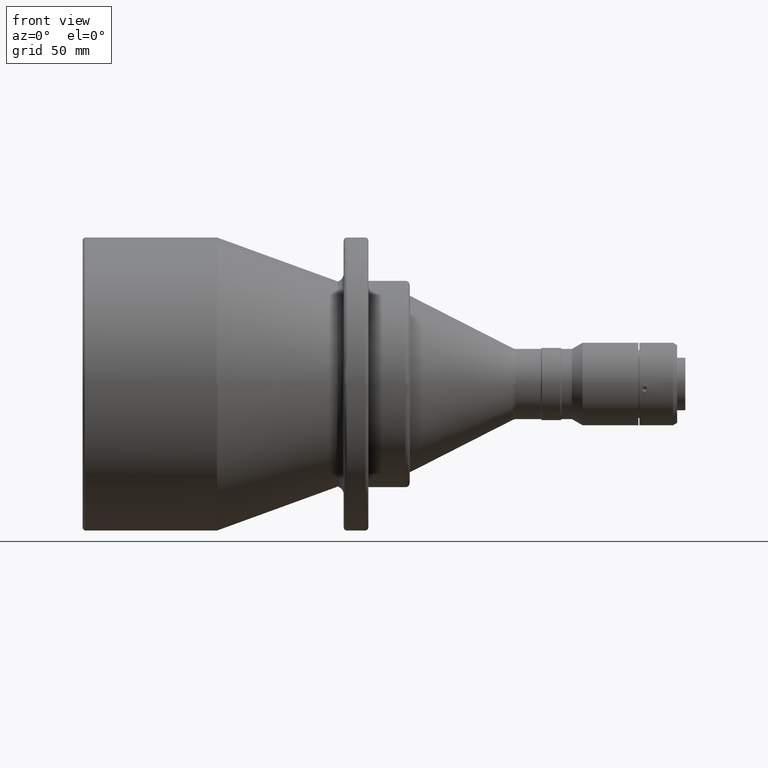
[diagram: clean part render]
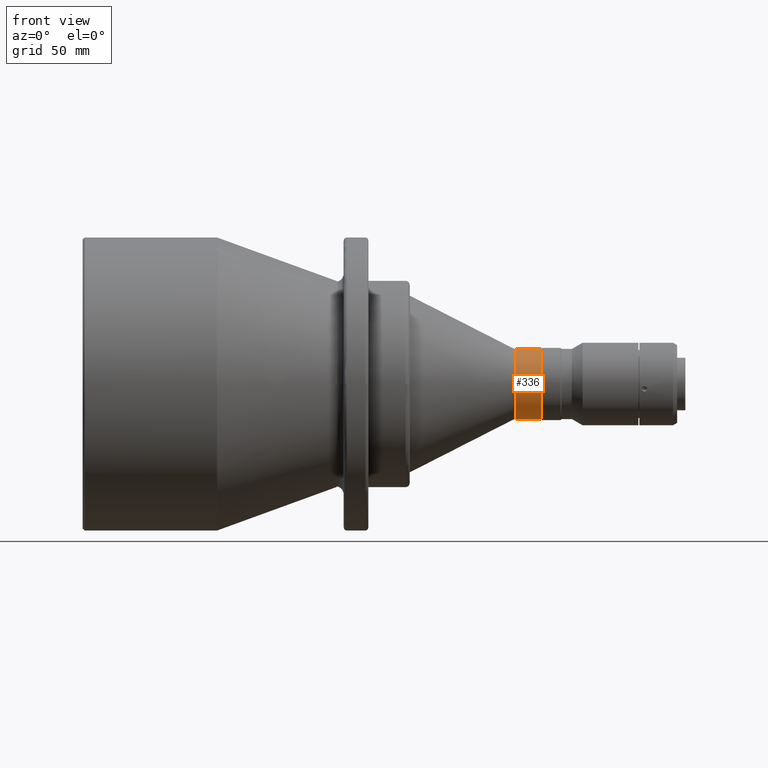
[diagram: same view with one face highlighted and labeled with its STEP entity id]
A machine part, front view. The second image highlights one B-rep face of the part: STEP entity #336.
In plain terms, the highlighted cylindrical surface (edge-blend (fillet) strip) has radius 17 mm, axis along (1, 0, 0).
Its self-contained STEP definition (entity closure, byte-faithful):
#50 = ORIENTED_EDGE ( 'NONE', *, *, #1549, .F. ) ;
#55 = DIRECTION ( 'NONE',  ( 1.000000000000000000, -0.0000000000000000000, 8.163404592855054900E-016 ) ) ;
#232 = VECTOR ( 'NONE', #1106, 1000.000000000000000 ) ;
#248 = CARTESIAN_POINT ( 'NONE',  ( 76.04999999999999700, 0.0000000000000000000, 0.0000000000000000000 ) ) ;
#293 = CARTESIAN_POINT ( 'NONE',  ( 76.04999999999999700, 2.112515728529184100E-015, 17.00000000000000000 ) ) ;
#321 = EDGE_CURVE ( 'NONE', #2036, #712, #865, .T. ) ;
#336 = ADVANCED_FACE ( 'NONE', ( #4099 ), #3731, .T. ) ;
#399 = EDGE_CURVE ( 'NONE', #712, #3761, #3147, .T. ) ;
#400 = CARTESIAN_POINT ( 'NONE',  ( 63.85023627700000000, 0.0000000000000000000, 0.0000000000000000000 ) ) ;
#507 = CARTESIAN_POINT ( 'NONE',  ( 63.85023627739815300, 0.0000000000000000000, -17.00000000000000000 ) ) ;
#626 = LINE ( 'NONE', #3696, #2168 ) ;
#700 = DIRECTION ( 'NONE',  ( 1.000000000000000000, 0.0000000000000000000, 4.081702296416016500E-016 ) ) ;
#712 = VERTEX_POINT ( 'NONE', #507 ) ;
#752 = ORIENTED_EDGE ( 'NONE', *, *, #321, .T. ) ;
#768 = AXIS2_PLACEMENT_3D ( 'NONE', #400, #700, #2807 ) ;
#773 = CIRCLE ( 'NONE', #3900, 16.99999999982279800 ) ;
#833 = CARTESIAN_POINT ( 'NONE',  ( 63.85023627729832900, -16.99999999986710000, -1.743379142380315100E-009 ) ) ;
#865 = CIRCLE ( 'NONE', #1074, 16.99999999982279800 ) ;
#943 = DIRECTION ( 'NONE',  ( 1.000000000000000000, 0.0000000000000000000, 4.081702296416016500E-016 ) ) ;
#1074 = AXIS2_PLACEMENT_3D ( 'NONE', #3122, #55, #3438 ) ;
#1082 = DIRECTION ( 'NONE',  ( -8.163404592917126400E-016, 0.0000000000000000000, -1.000000000000000000 ) ) ;
#1106 = DIRECTION ( 'NONE',  ( 1.000000000000000000, 0.0000000000000000000, 4.081702296416016500E-016 ) ) ;
#1171 = VERTEX_POINT ( 'NONE', #3092 ) ;
#1318 = CARTESIAN_POINT ( 'NONE',  ( 63.85023627739813900, 0.0000000000000000000, 0.0000000000000000000 ) ) ;
#1422 = ORIENTED_EDGE ( 'NONE', *, *, #399, .T. ) ;
#1549 = EDGE_CURVE ( 'NONE', #1171, #3932, #626, .T. ) ;
#2036 = VERTEX_POINT ( 'NONE', #833 ) ;
#2099 = DIRECTION ( 'NONE',  ( 0.0000000000000000000, 1.000000000000000000, 0.0000000000000000000 ) ) ;
#2168 = VECTOR ( 'NONE', #943, 1000.000000000000000 ) ;
#2194 = CARTESIAN_POINT ( 'NONE',  ( 76.04999999999999700, 0.0000000000000000000, -17.00000000000000000 ) ) ;
#2460 = CARTESIAN_POINT ( 'NONE',  ( 63.85023627700000800, 0.0000000000000000000, -17.00000000000000000 ) ) ;
#2807 = DIRECTION ( 'NONE',  ( 8.163404592832033000E-016, 0.0000000000000000000, -1.000000000000000000 ) ) ;
#2961 = EDGE_LOOP ( 'NONE', ( #50, #3016, #752, #1422, #3204 ) ) ;
#2973 = DIRECTION ( 'NONE',  ( 1.000000000000000000, 0.0000000000000000000, 0.0000000000000000000 ) ) ;
#3016 = ORIENTED_EDGE ( 'NONE', *, *, #3452, .T. ) ;
#3092 = CARTESIAN_POINT ( 'NONE',  ( 63.85023627739815300, 2.081899558550500300E-015, 17.00000000000000000 ) ) ;
#3122 = CARTESIAN_POINT ( 'NONE',  ( 63.85023627739813900, 0.0000000000000000000, 0.0000000000000000000 ) ) ;
#3147 = LINE ( 'NONE', #2460, #232 ) ;
#3204 = ORIENTED_EDGE ( 'NONE', *, *, #3376, .F. ) ;
#3376 = EDGE_CURVE ( 'NONE', #3932, #3761, #4161, .T. ) ;
#3438 = DIRECTION ( 'NONE',  ( 8.163404592917126400E-016, 0.0000000000000000000, -1.000000000000000000 ) ) ;
#3452 = EDGE_CURVE ( 'NONE', #1171, #2036, #773, .T. ) ;
#3625 = AXIS2_PLACEMENT_3D ( 'NONE', #248, #2973, #2099 ) ;
#3696 = CARTESIAN_POINT ( 'NONE',  ( 63.85023627699998600, 2.081899558550500300E-015, 17.00000000000000000 ) ) ;
#3712 = DIRECTION ( 'NONE',  ( 1.000000000000000000, 0.0000000000000000000, -8.163404592855054900E-016 ) ) ;
#3731 = CYLINDRICAL_SURFACE ( 'NONE', #768, 17.00000000000000000 ) ;
#3761 = VERTEX_POINT ( 'NONE', #2194 ) ;
#3900 = AXIS2_PLACEMENT_3D ( 'NONE', #1318, #3712, #1082 ) ;
#3932 = VERTEX_POINT ( 'NONE', #293 ) ;
#4099 = FACE_OUTER_BOUND ( 'NONE', #2961, .T. ) ;
#4161 = CIRCLE ( 'NONE', #3625, 17.00000000000000000 ) ;